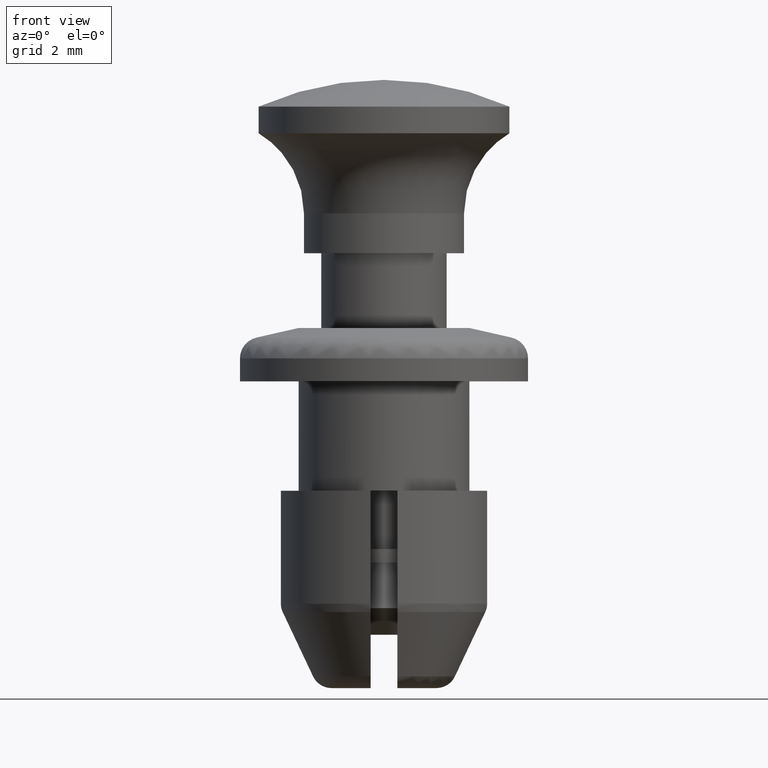
[diagram: clean part render]
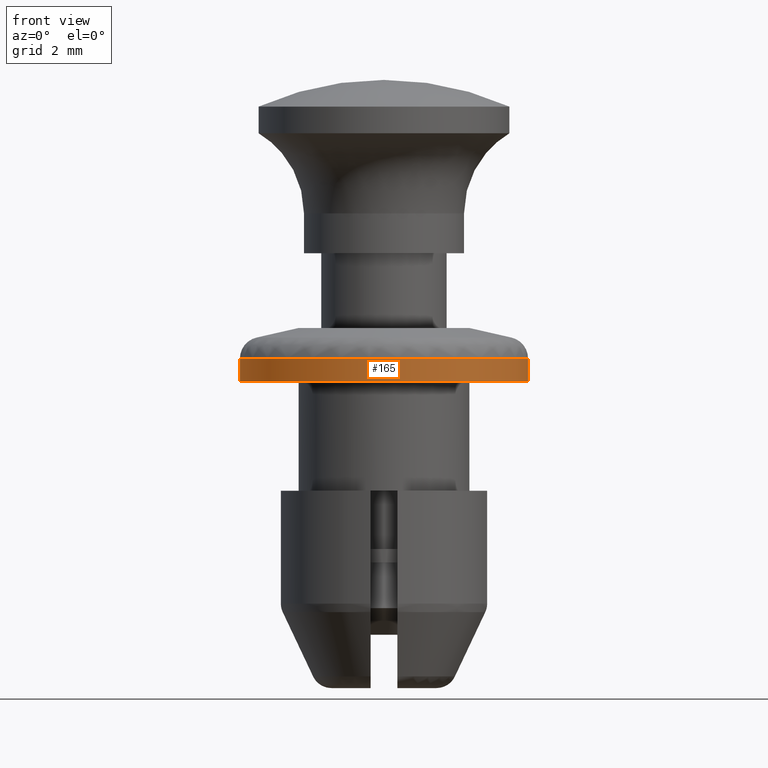
[diagram: same view with one face highlighted and labeled with its STEP entity id]
A machine part, front view. The second image highlights one B-rep face of the part: STEP entity #165.
In plain terms, the highlighted cylindrical surface (partial cylindrical patch) has radius 5.4 mm, axis along (0, 0, 1).
Its self-contained STEP definition (entity closure, byte-faithful):
#165=ADVANCED_FACE('',(#725),#724,.T.);
#724=CYLINDRICAL_SURFACE('',#1401,5.40000000000E+00);
#725=FACE_OUTER_BOUND('',#1402,.T.);
#1398=CARTESIAN_POINT('',(0.00000000000E+00,0.00000000000E+00,0.00000000000E+00));
#1399=DIRECTION('',(-0.00000000000E+00,-0.00000000000E+00,1.00000000000E+00));
#1400=DIRECTION('',(1.00000000000E+00,0.00000000000E+00,0.00000000000E+00));
#1401=AXIS2_PLACEMENT_3D('',#1398,#1399,#1400);
#1402=EDGE_LOOP('',(#1886,#1887,#1888,#1889));
#1886=ORIENTED_EDGE('',*,*,#2118,.F.);
#1887=ORIENTED_EDGE('',*,*,#2152,.T.);
#1888=ORIENTED_EDGE('',*,*,#2148,.T.);
#1889=ORIENTED_EDGE('',*,*,#2153,.F.);
#2118=EDGE_CURVE('',#2953,#2952,#2960,.T.);
#2148=EDGE_CURVE('',#3148,#3149,#3150,.T.);
#2152=EDGE_CURVE('',#2953,#3148,#3174,.T.);
#2153=EDGE_CURVE('',#2952,#3149,#3180,.T.);
#2952=VERTEX_POINT('',#4015);
#2953=VERTEX_POINT('',#4016);
#2960=CIRCLE('',#4024,5.40000000000E+00);
#3148=VERTEX_POINT('',#4141);
#3149=VERTEX_POINT('',#4142);
#3150=CIRCLE('',#4146,5.40000000000E+00);
#3174=(BOUNDED_CURVE() B_SPLINE_CURVE(1,(#4157,#4158),.UNSPECIFIED.,.F.,.F.) B_SPLINE_CURVE_WITH_KNOTS((2,2),(8.33332935974E-02,9.16666633252E-01),.UNSPECIFIED.) CURVE() GEOMETRIC_REPRESENTATION_ITEM() RATIONAL_B_SPLINE_CURVE((1.00000000000E+00,1.00000000000E+00)) REPRESENTATION_ITEM('') );
#3180=(BOUNDED_CURVE() B_SPLINE_CURVE(1,(#4159,#4160),.UNSPECIFIED.,.F.,.F.) B_SPLINE_CURVE_WITH_KNOTS((2,2),(8.33333333333E-02,9.16666666667E-01),.UNSPECIFIED.) CURVE() GEOMETRIC_REPRESENTATION_ITEM() RATIONAL_B_SPLINE_CURVE((7.50000000000E-01,7.50000000000E-01)) REPRESENTATION_ITEM('') );
#4015=CARTESIAN_POINT('',(-5.40000000000E+00,0.00000000000E+00,-2.00000000000E+00));
#4016=CARTESIAN_POINT('',(5.40000000000E+00,2.96059473233E-16,-2.00000000000E+00));
#4021=CARTESIAN_POINT('',(0.00000000000E+00,0.00000000000E+00,-2.00000000000E+00));
#4022=DIRECTION('',(-0.00000000000E+00,0.00000000000E+00,-1.00000000000E+00));
#4023=DIRECTION('',(-1.00000000000E+00,-1.22460635382E-16,0.00000000000E+00));
#4024=AXIS2_PLACEMENT_3D('',#4021,#4022,#4023);
#4141=CARTESIAN_POINT('',(5.40000000000E+00,2.96059473233E-16,-1.13900000000E+00));
#4142=CARTESIAN_POINT('',(-5.40000000000E+00,0.00000000000E+00,-1.13900000000E+00));
#4143=CARTESIAN_POINT('',(0.00000000000E+00,0.00000000000E+00,-1.13900000000E+00));
#4144=DIRECTION('',(-0.00000000000E+00,0.00000000000E+00,-1.00000000000E+00));
#4145=DIRECTION('',(-1.00000000000E+00,-1.22460635382E-16,0.00000000000E+00));
#4146=AXIS2_PLACEMENT_3D('',#4143,#4144,#4145);
#4157=CARTESIAN_POINT('',(5.40000000000E+00,0.00000000000E+00,-2.00000004106E+00));
#4158=CARTESIAN_POINT('',(5.40000000000E+00,0.00000000000E+00,-1.13900003452E+00));
#4159=CARTESIAN_POINT('',(-5.40000000000E+00,-2.96059473233E-16,-2.00000000000E+00));
#4160=CARTESIAN_POINT('',(-5.40000000000E+00,-2.96059473233E-16,-1.13900000000E+00));